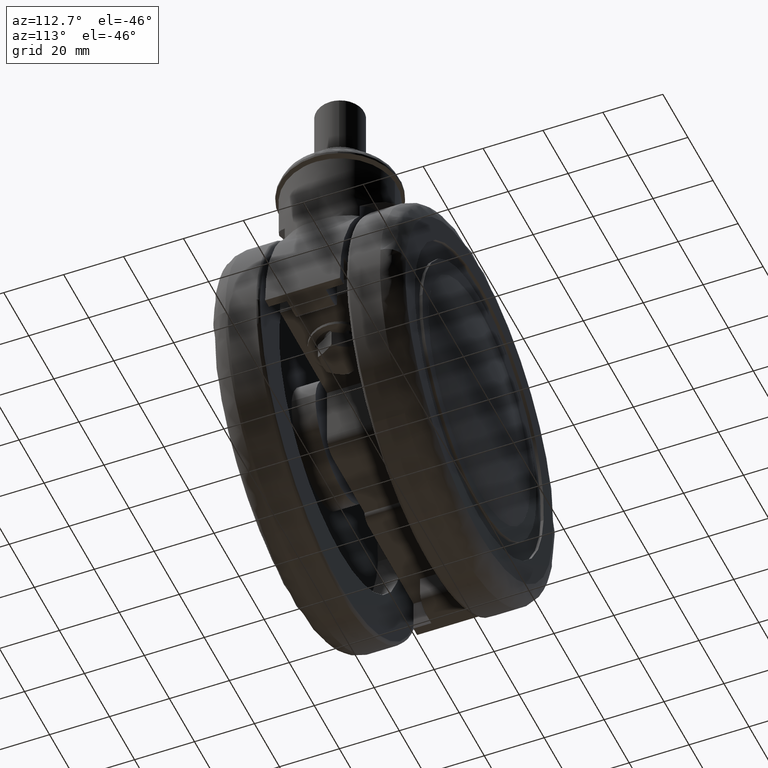
[diagram: clean part render]
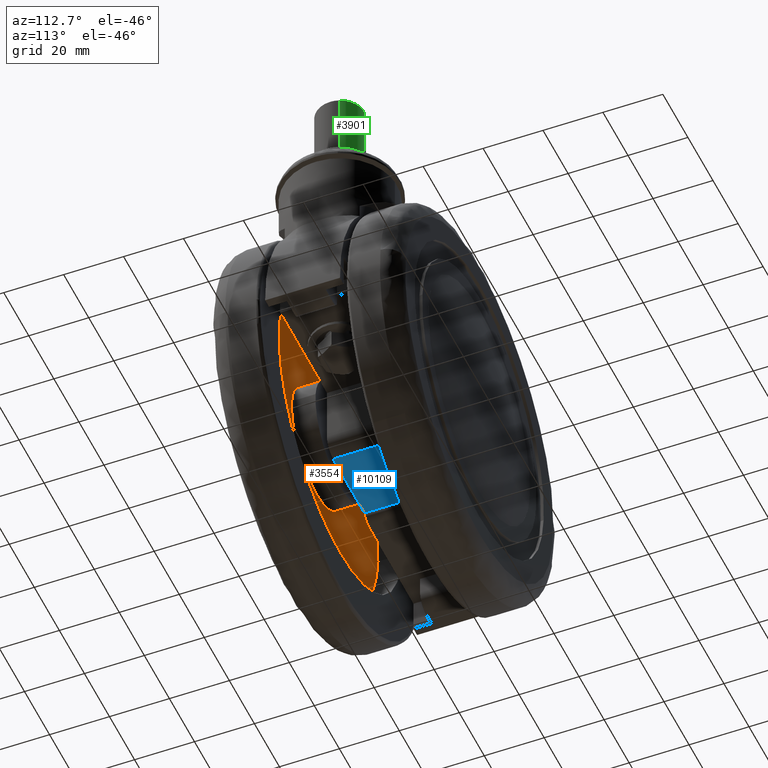
[diagram: same view with three faces highlighted in distinct colors, each labeled with its STEP entity id]
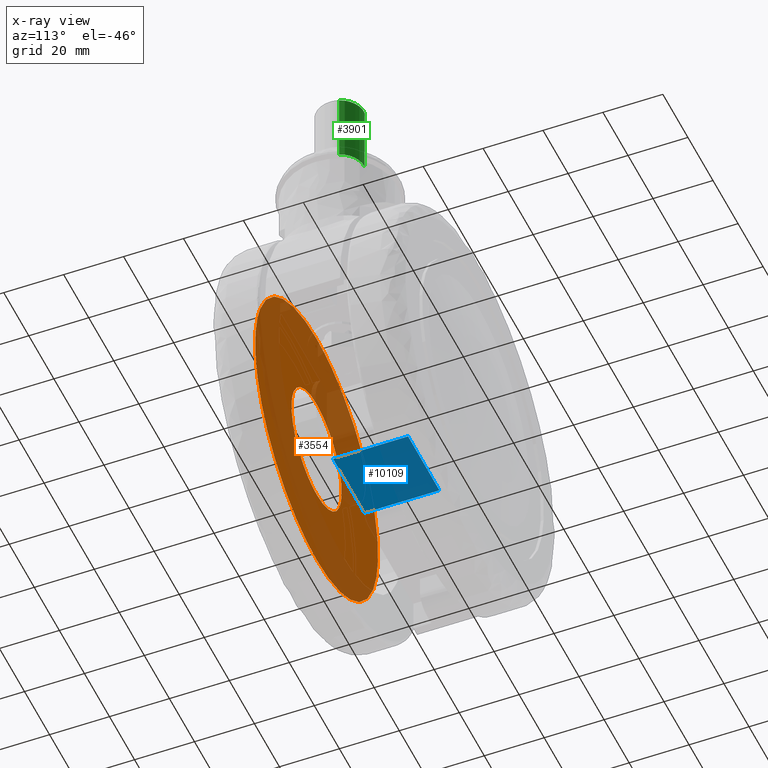
[diagram: x-ray of the same camera — body ghosted, the three highlighted faces saturated]
A machine part, auxiliary view with three faces highlighted in distinct colors.
The next image is the same camera in x-ray (body ghosted, the three faces saturated) — at least one of them is partly hidden behind the body in this view.
Their STEP definitions:

[orange] entity #3554 — the highlighted face is a freeform B-spline surface patch.
#2435=CARTESIAN_POINT('',(19.860190527255501,-22.500000000000000,2.360684693285129));
#2436=VERTEX_POINT('',#2435);
#2437=CARTESIAN_POINT('',(0.0,-22.500000000000000,-20.0));
#2438=VERTEX_POINT('',#2437);
#2439=CARTESIAN_POINT('',(19.860190527255497,-22.499999999999996,2.360684693285129));
#2440=CARTESIAN_POINT('',(20.000000000000004,-22.500000000000000,1.184482393189748));
#2441=CARTESIAN_POINT('',(20.0,-22.500000000000000,0.0));
#2442=CARTESIAN_POINT('',(19.999999999999996,-22.500000000000000,-19.999999999999996));
#2443=CARTESIAN_POINT('',(0.0,-22.500000000000000,-20.0));
#2451=(BOUNDED_CURVE()B_SPLINE_CURVE(2,(#2439,#2440,#2441,#2442,#2443),.UNSPECIFIED.,.F.,.U.)B_SPLINE_CURVE_WITH_KNOTS((3,2,3),(0.229562473513092,0.250000000000000,0.500000000000000),.UNSPECIFIED.)CURVE()GEOMETRIC_REPRESENTATION_ITEM()RATIONAL_B_SPLINE_CURVE((0.956026754182883,0.976055948330657,1.0,0.707106781186548,1.0))REPRESENTATION_ITEM(''));
#2452=EDGE_CURVE('',#2436,#2438,#2451,.T.);
#2454=CARTESIAN_POINT('',(-19.962695968425340,-22.500000000000000,-1.220970790893329));
#2455=VERTEX_POINT('',#2454);
#2456=CARTESIAN_POINT('',(0.0,-22.500000000000000,-20.0));
#2457=CARTESIAN_POINT('',(-18.814121337743373,-22.500000000000000,-20.0));
#2458=CARTESIAN_POINT('',(-19.962695968425333,-22.499999999999993,-1.220970790893328));
#2466=(BOUNDED_CURVE()B_SPLINE_CURVE(2,(#2456,#2457,#2458),.UNSPECIFIED.,.F.,.U.)B_SPLINE_CURVE_WITH_KNOTS((3,3),(0.500000000000000,0.739332962238576),.UNSPECIFIED.)CURVE()GEOMETRIC_REPRESENTATION_ITEM()RATIONAL_B_SPLINE_CURVE((1.0,0.719603993287140,0.976072041665932))REPRESENTATION_ITEM(''));
#2467=EDGE_CURVE('',#2438,#2455,#2466,.T.);
#2534=CARTESIAN_POINT('',(0.0,-22.500000000000000,20.0));
#2535=VERTEX_POINT('',#2534);
#2536=CARTESIAN_POINT('',(0.0,-22.500000000000000,20.0));
#2537=CARTESIAN_POINT('',(17.763490518757195,-22.499999999999996,20.000000000000004));
#2538=CARTESIAN_POINT('',(19.860190527255501,-22.500000000000000,2.360684693285129));
#2546=(BOUNDED_CURVE()B_SPLINE_CURVE(2,(#2536,#2537,#2538),.UNSPECIFIED.,.F.,.U.)B_SPLINE_CURVE_WITH_KNOTS((3,3),(0.0,0.229562473513092),.UNSPECIFIED.)CURVE()GEOMETRIC_REPRESENTATION_ITEM()RATIONAL_B_SPLINE_CURVE((1.0,0.731050832855890,0.956026754182883))REPRESENTATION_ITEM(''));
#2547=EDGE_CURVE('',#2535,#2436,#2546,.T.);
#2581=CARTESIAN_POINT('',(-19.962695968425333,-22.500000000000004,-1.220970790893329));
#2582=CARTESIAN_POINT('',(-20.000000000000004,-22.500000000000000,-0.611055266168516));
#2583=CARTESIAN_POINT('',(-20.0,-22.500000000000000,0.0));
#2584=CARTESIAN_POINT('',(-19.999999999999996,-22.500000000000000,19.999999999999996));
#2585=CARTESIAN_POINT('',(0.0,-22.500000000000000,20.0));
#2593=(BOUNDED_CURVE()B_SPLINE_CURVE(2,(#2581,#2582,#2583,#2584,#2585),.UNSPECIFIED.,.F.,.U.)B_SPLINE_CURVE_WITH_KNOTS((3,2,3),(0.739332962238577,0.750000000000000,1.0),.UNSPECIFIED.)CURVE()GEOMETRIC_REPRESENTATION_ITEM()RATIONAL_B_SPLINE_CURVE((0.976072041665933,0.987502787899408,1.0,0.707106781186548,1.0))REPRESENTATION_ITEM(''));
#2594=EDGE_CURVE('',#2455,#2535,#2593,.T.);
#2621=CARTESIAN_POINT('',(48.657473594785387,-22.500000000000050,5.783620264975884));
#2622=VERTEX_POINT('',#2621);
#2623=CARTESIAN_POINT('',(0.0,-22.500000000000000,-49.0));
#2624=VERTEX_POINT('',#2623);
#2625=CARTESIAN_POINT('',(48.657473594785380,-22.500000000000050,5.783620264975885));
#2626=CARTESIAN_POINT('',(49.0,-22.499999999999996,2.901952943814937));
#2627=CARTESIAN_POINT('',(49.0,-22.500000000000000,0.0));
#2628=CARTESIAN_POINT('',(48.999999999999986,-22.500000000000004,-48.999999999999986));
#2629=CARTESIAN_POINT('',(0.0,-22.500000000000000,-49.0));
#2637=(BOUNDED_CURVE()B_SPLINE_CURVE(2,(#2625,#2626,#2627,#2628,#2629),.UNSPECIFIED.,.F.,.U.)B_SPLINE_CURVE_WITH_KNOTS((3,2,3),(0.229562672305244,0.250000000000000,0.500000000000000),.UNSPECIFIED.)CURVE()GEOMETRIC_REPRESENTATION_ITEM()RATIONAL_B_SPLINE_CURVE((0.956027143824006,0.976056181230150,1.0,0.707106781186547,1.0))REPRESENTATION_ITEM(''));
#2638=EDGE_CURVE('',#2622,#2624,#2637,.T.);
#2679=CARTESIAN_POINT('',(-48.908608617510168,-22.500000000000849,-2.991321296004768));
#2680=VERTEX_POINT('',#2679);
#2686=CARTESIAN_POINT('',(0.0,-22.500000000000000,-49.0));
#2687=CARTESIAN_POINT('',(-46.094651232564416,-22.499999999999996,-49.0));
#2688=CARTESIAN_POINT('',(-48.908608617510168,-22.500000000000846,-2.991321296004768));
#2696=(BOUNDED_CURVE()B_SPLINE_CURVE(2,(#2686,#2687,#2688),.UNSPECIFIED.,.F.,.U.)B_SPLINE_CURVE_WITH_KNOTS((3,3),(0.500000000000000,0.739333163832928),.UNSPECIFIED.)CURVE()GEOMETRIC_REPRESENTATION_ITEM()RATIONAL_B_SPLINE_CURVE((1.0,0.719603757104665,0.976072473721384))REPRESENTATION_ITEM(''));
#2697=EDGE_CURVE('',#2624,#2680,#2696,.T.);
#2720=CARTESIAN_POINT('',(0.0,-22.500000000000000,49.0));
#2721=VERTEX_POINT('',#2720);
#2722=CARTESIAN_POINT('',(0.0,-22.500000000000000,49.0));
#2723=CARTESIAN_POINT('',(43.520603322928430,-22.499999999999993,48.999999999999986));
#2724=CARTESIAN_POINT('',(48.657473594785380,-22.500000000000050,5.783620264975885));
#2732=(BOUNDED_CURVE()B_SPLINE_CURVE(2,(#2722,#2723,#2724),.UNSPECIFIED.,.F.,.U.)B_SPLINE_CURVE_WITH_KNOTS((3,3),(0.0,0.229562672305244),.UNSPECIFIED.)CURVE()GEOMETRIC_REPRESENTATION_ITEM()RATIONAL_B_SPLINE_CURVE((1.0,0.731050599956398,0.956027143824006))REPRESENTATION_ITEM(''));
#2733=EDGE_CURVE('',#2721,#2622,#2732,.T.);
#2735=CARTESIAN_POINT('',(-48.908608617510168,-22.500000000000846,-2.991321296004768));
#2736=CARTESIAN_POINT('',(-49.0,-22.500000000000004,-1.497056750922622));
#2737=CARTESIAN_POINT('',(-49.0,-22.500000000000000,0.0));
#2738=CARTESIAN_POINT('',(-48.999999999999986,-22.500000000000004,48.999999999999986));
#2739=CARTESIAN_POINT('',(0.0,-22.500000000000000,49.0));
#2747=(BOUNDED_CURVE()B_SPLINE_CURVE(2,(#2735,#2736,#2737,#2738,#2739),.UNSPECIFIED.,.F.,.U.)B_SPLINE_CURVE_WITH_KNOTS((3,2,3),(0.739333163832928,0.750000000000000,1.0),.UNSPECIFIED.)CURVE()GEOMETRIC_REPRESENTATION_ITEM()RATIONAL_B_SPLINE_CURVE((0.976072473721384,0.987503024081883,1.0,0.707106781186547,1.0))REPRESENTATION_ITEM(''));
#2748=EDGE_CURVE('',#2680,#2721,#2747,.T.);
#3537=CARTESIAN_POINT('',(-53.893910873426108,-22.500000000000000,53.895099810056983));
#3538=CARTESIAN_POINT('',(-53.893910873426108,-22.500000000000000,-53.895102438621819));
#3539=CARTESIAN_POINT('',(53.894208777440703,-22.500000000000000,53.895099810056983));
#3540=CARTESIAN_POINT('',(53.894208777440703,-22.500000000000000,-53.895102438621819));
#3541=B_SPLINE_SURFACE_WITH_KNOTS('',1,1,((#3537,#3539),(#3538,#3540)),.UNSPECIFIED.,.F.,.F.,.U.,(2,2),(2,2),(0.0,107.790202248678800),(0.0,107.788119650866800),.UNSPECIFIED.);
#3542=ORIENTED_EDGE('',*,*,#2733,.T.);
#3543=ORIENTED_EDGE('',*,*,#2638,.T.);
#3544=ORIENTED_EDGE('',*,*,#2697,.T.);
#3545=ORIENTED_EDGE('',*,*,#2748,.T.);
#3546=EDGE_LOOP('',(#3542,#3543,#3544,#3545));
#3547=FACE_OUTER_BOUND('',#3546,.T.);
#3548=ORIENTED_EDGE('',*,*,#2467,.F.);
#3549=ORIENTED_EDGE('',*,*,#2452,.F.);
#3550=ORIENTED_EDGE('',*,*,#2547,.F.);
#3551=ORIENTED_EDGE('',*,*,#2594,.F.);
#3552=EDGE_LOOP('',(#3548,#3549,#3550,#3551));
#3553=FACE_BOUND('',#3552,.T.);
#3554=ADVANCED_FACE('',(#3547,#3553),#3541,.F.);

[blue] entity #10109 — the highlighted face is a freeform B-spline surface patch.
#9602=CARTESIAN_POINT('',(10.708348754011420,12.500000000000000,-18.500000000000000));
#9603=VERTEX_POINT('',#9602);
#9624=CARTESIAN_POINT('',(10.708348754011420,-12.500000000000000,-18.500000000000000));
#9625=VERTEX_POINT('',#9624);
#9639=CARTESIAN_POINT('',(10.708348754011420,12.500000000000000,-18.500000000000000));
#9640=CARTESIAN_POINT('',(10.708348754011420,-12.500000000000000,-18.500000000000000));
#9641=QUASI_UNIFORM_CURVE('',1,(#9639,#9640),.UNSPECIFIED.,.F.,.U.);
#9642=EDGE_CURVE('',#9603,#9625,#9641,.T.);
#9661=CARTESIAN_POINT('',(-14.291651245988600,12.500000000000000,-18.500000000000000));
#9662=VERTEX_POINT('',#9661);
#9678=CARTESIAN_POINT('',(-14.291651245988600,-12.500000000000000,-18.500000000000000));
#9679=VERTEX_POINT('',#9678);
#9680=CARTESIAN_POINT('',(-14.291651245988600,12.500000000000000,-18.500000000000000));
#9681=CARTESIAN_POINT('',(-14.291651245988600,-12.500000000000000,-18.500000000000000));
#9682=QUASI_UNIFORM_CURVE('',1,(#9680,#9681),.UNSPECIFIED.,.F.,.U.);
#9683=EDGE_CURVE('',#9662,#9679,#9682,.T.);
#10090=CARTESIAN_POINT('',(-15.540400728169530,-13.748749951545150,-18.500000000000000));
#10091=CARTESIAN_POINT('',(11.957099353779430,-13.748749951545150,-18.500000000000000));
#10092=CARTESIAN_POINT('',(-15.540400728169530,13.748750622097401,-18.500000000000000));
#10093=CARTESIAN_POINT('',(11.957099353779430,13.748750622097401,-18.500000000000000));
#10094=B_SPLINE_SURFACE_WITH_KNOTS('',1,1,((#10090,#10092),(#10091,#10093)),.UNSPECIFIED.,.F.,.F.,.U.,(2,2),(2,2),(0.0,27.497500081948960),(0.0,27.497500573642551),.UNSPECIFIED.);
#10095=CARTESIAN_POINT('',(10.708348754011420,12.500000000000000,-18.500000000000000));
#10096=CARTESIAN_POINT('',(-14.291651245988600,12.500000000000000,-18.500000000000000));
#10097=QUASI_UNIFORM_CURVE('',1,(#10095,#10096),.UNSPECIFIED.,.F.,.U.);
#10098=EDGE_CURVE('',#9603,#9662,#10097,.T.);
#10099=ORIENTED_EDGE('',*,*,#10098,.F.);
#10100=ORIENTED_EDGE('',*,*,#9642,.T.);
#10101=CARTESIAN_POINT('',(10.708348754011420,-12.500000000000000,-18.500000000000000));
#10102=CARTESIAN_POINT('',(-14.291651245988600,-12.500000000000000,-18.500000000000000));
#10103=QUASI_UNIFORM_CURVE('',1,(#10101,#10102),.UNSPECIFIED.,.F.,.U.);
#10104=EDGE_CURVE('',#9625,#9679,#10103,.T.);
#10105=ORIENTED_EDGE('',*,*,#10104,.T.);
#10106=ORIENTED_EDGE('',*,*,#9683,.F.);
#10107=EDGE_LOOP('',(#10099,#10100,#10105,#10106));
#10108=FACE_OUTER_BOUND('',#10107,.T.);
#10109=ADVANCED_FACE('',(#10108),#10094,.F.);

[green] entity #3901 — the highlighted face is a freeform B-spline surface patch.
#3712=CARTESIAN_POINT('',(42.489148630206607,2.812943795150293,104.0));
#3713=VERTEX_POINT('',#3712);
#3776=CARTESIAN_POINT('',(34.511619508684362,7.985078865962491,104.0));
#3777=VERTEX_POINT('',#3776);
#3791=CARTESIAN_POINT('',(34.511611683265123,7.985078387347043,80.0));
#3792=VERTEX_POINT('',#3791);
#3793=CARTESIAN_POINT('',(34.511619508684362,7.985078865962491,104.0));
#3794=CARTESIAN_POINT('',(34.511611683265123,7.985078387347043,80.0));
#3795=QUASI_UNIFORM_CURVE('',1,(#3793,#3794),.UNSPECIFIED.,.F.,.U.);
#3796=EDGE_CURVE('',#3777,#3792,#3795,.T.);
#3830=CARTESIAN_POINT('',(42.489148630206607,2.812943795150290,80.0));
#3831=VERTEX_POINT('',#3830);
#3845=CARTESIAN_POINT('',(42.489148630206607,2.812943795150293,104.0));
#3846=CARTESIAN_POINT('',(42.489148630206607,2.812943795150290,80.0));
#3847=QUASI_UNIFORM_CURVE('',1,(#3845,#3846),.UNSPECIFIED.,.F.,.U.);
#3848=EDGE_CURVE('',#3713,#3831,#3847,.T.);
#3853=CARTESIAN_POINT('',(34.511611683721142,7.985078387374934,104.599999999999990));
#3854=CARTESIAN_POINT('',(40.410956654424524,8.345897782954735,104.600000000000020));
#3855=CARTESIAN_POINT('',(42.489148630213251,2.812943795132577,104.600000000000010));
#3856=CARTESIAN_POINT('',(34.511611683721142,7.985078387374934,79.384999999999991));
#3857=CARTESIAN_POINT('',(40.410956654424524,8.345897782954735,79.384999999999991));
#3858=CARTESIAN_POINT('',(42.489148630213251,2.812943795132577,79.385000000000005));
#3866=(BOUNDED_SURFACE()B_SPLINE_SURFACE(2,1,((#3853,#3856),(#3854,#3857),(#3855,#3858)),.UNSPECIFIED.,.F.,.F.,.U.)B_SPLINE_SURFACE_WITH_KNOTS((3,3),(2,2),(0.0,10.531589791093159),(0.0,25.215000000000028),.UNSPECIFIED.)GEOMETRIC_REPRESENTATION_ITEM()RATIONAL_B_SPLINE_SURFACE(((1.0,1.0),(0.765685424949238,0.765685424949238),(0.906274169979695,0.906274169979695)))REPRESENTATION_ITEM('')SURFACE());
#3867=CARTESIAN_POINT('',(34.511619508684362,7.985078865962491,103.999999999999970));
#3868=CARTESIAN_POINT('',(34.755581817062833,8.0,103.999999999999990));
#3869=CARTESIAN_POINT('',(35.0,8.0,104.0));
#3870=CARTESIAN_POINT('',(40.540876765527351,8.0,104.000000000000010));
#3871=CARTESIAN_POINT('',(42.489148630206607,2.812943795150292,104.000000000000010));
#3879=(BOUNDED_CURVE()B_SPLINE_CURVE(2,(#3867,#3868,#3869,#3870,#3871),.UNSPECIFIED.,.F.,.U.)B_SPLINE_CURVE_WITH_KNOTS((3,2,3),(0.239333131328906,0.250000000000000,0.440284170898162),.UNSPECIFIED.)CURVE()GEOMETRIC_REPRESENTATION_ITEM()RATIONAL_B_SPLINE_CURVE((0.976072404058965,0.987502986001052,1.0,0.777068226785553,0.893499554634851))REPRESENTATION_ITEM(''));
#3880=EDGE_CURVE('',#3777,#3713,#3879,.T.);
#3881=ORIENTED_EDGE('',*,*,#3880,.T.);
#3882=ORIENTED_EDGE('',*,*,#3848,.T.);
#3883=CARTESIAN_POINT('',(34.511611683265116,7.985078387347043,80.0));
#3884=CARTESIAN_POINT('',(34.755577893153990,8.0,80.0));
#3885=CARTESIAN_POINT('',(35.0,8.0,80.0));
#3886=CARTESIAN_POINT('',(40.540876765527337,8.0,80.0));
#3887=CARTESIAN_POINT('',(42.489148630206607,2.812943795150290,80.0));
#3895=(BOUNDED_CURVE()B_SPLINE_CURVE(2,(#3883,#3884,#3885,#3886,#3887),.UNSPECIFIED.,.F.,.U.)B_SPLINE_CURVE_WITH_KNOTS((3,2,3),(0.739332962222260,0.750000000000000,0.940284170898162),.UNSPECIFIED.)CURVE()GEOMETRIC_REPRESENTATION_ITEM()RATIONAL_B_SPLINE_CURVE((0.976072041630964,0.987502787880292,1.0,0.777068226785554,0.893499554634850))REPRESENTATION_ITEM(''));
#3896=EDGE_CURVE('',#3792,#3831,#3895,.T.);
#3897=ORIENTED_EDGE('',*,*,#3896,.F.);
#3898=ORIENTED_EDGE('',*,*,#3796,.F.);
#3899=EDGE_LOOP('',(#3881,#3882,#3897,#3898));
#3900=FACE_OUTER_BOUND('',#3899,.T.);
#3901=ADVANCED_FACE('',(#3900),#3866,.T.);